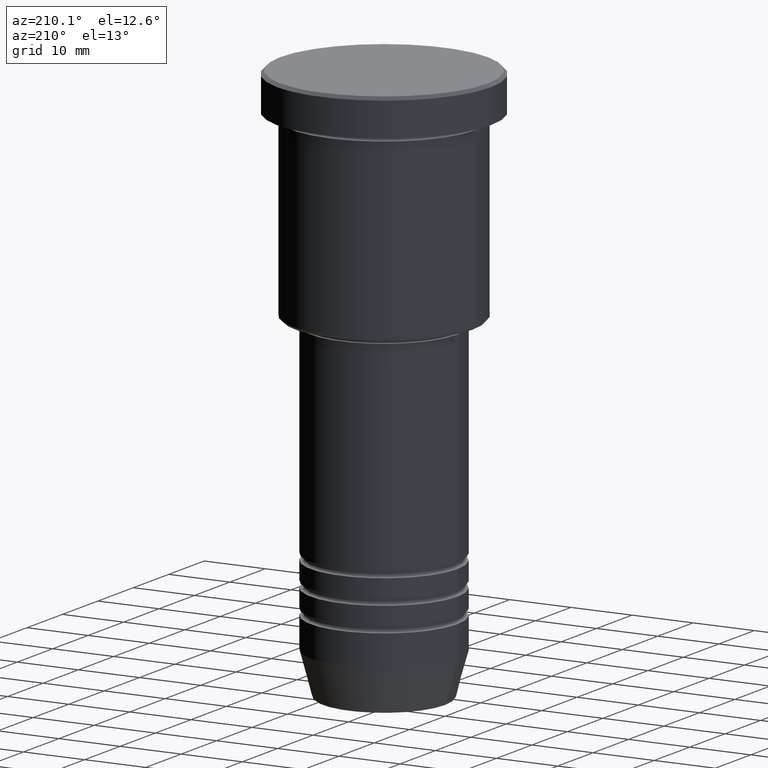
[diagram: clean part render]
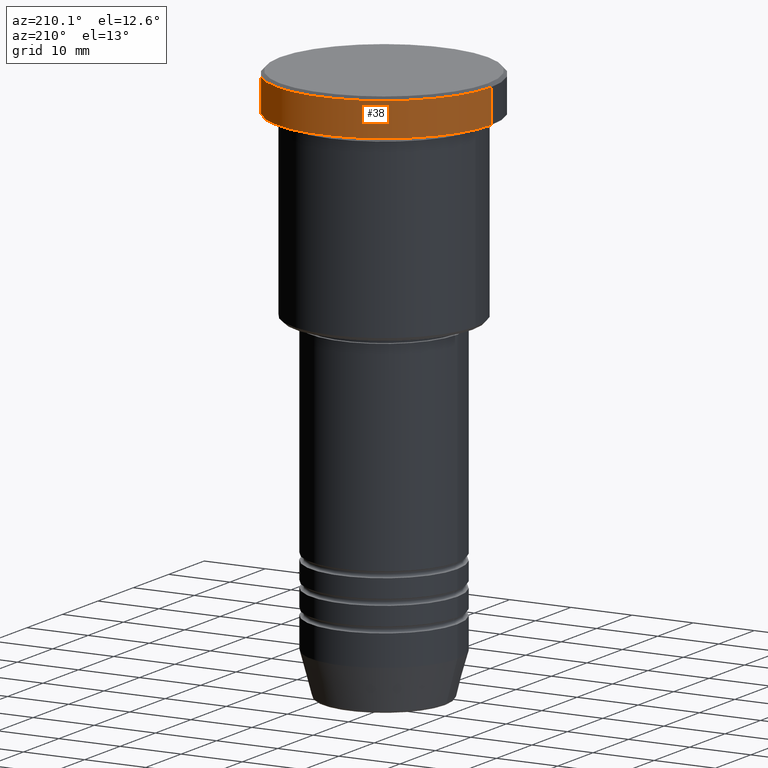
[diagram: same view with one face highlighted and labeled with its STEP entity id]
A machine part, auxiliary view. The second image highlights one B-rep face of the part: STEP entity #38.
In plain terms, the highlighted cylindrical surface (partial cylindrical patch) has radius 17.5 mm, axis along (-0, -0, 1).
Its self-contained STEP definition (entity closure, byte-faithful):
#22 = CARTESIAN_POINT ( 'NONE',  ( -17.50000000000000000, 2.143131898507868248E-15, 0.000000000000000000 ) ) ;
#38 = ADVANCED_FACE ( 'NONE', ( #1038 ), #945, .T. ) ;
#64 = VECTOR ( 'NONE', #702, 1000.000000000000000 ) ;
#66 = CARTESIAN_POINT ( 'NONE',  ( 0.000000000000000000, 0.000000000000000000, -5.999999999999995559 ) ) ;
#114 = CARTESIAN_POINT ( 'NONE',  ( 0.000000000000000000, 0.000000000000000000, -0.5000000000000142109 ) ) ;
#133 = CARTESIAN_POINT ( 'NONE',  ( 0.000000000000000000, 0.000000000000000000, 0.000000000000000000 ) ) ;
#150 = ORIENTED_EDGE ( 'NONE', *, *, #899, .T. ) ;
#175 = ORIENTED_EDGE ( 'NONE', *, *, #510, .T. ) ;
#177 = CIRCLE ( 'NONE', #354, 17.50000000000000000 ) ;
#184 = CARTESIAN_POINT ( 'NONE',  ( 17.50000000000000000, 0.000000000000000000, -0.5000000000000142109 ) ) ;
#187 = ORIENTED_EDGE ( 'NONE', *, *, #952, .F. ) ;
#286 = ORIENTED_EDGE ( 'NONE', *, *, #344, .T. ) ;
#324 = DIRECTION ( 'NONE',  ( 1.000000000000000000, 0.000000000000000000, 0.000000000000000000 ) ) ;
#334 = DIRECTION ( 'NONE',  ( 1.000000000000000000, 0.000000000000000000, 0.000000000000000000 ) ) ;
#344 = EDGE_CURVE ( 'NONE', #1124, #977, #534, .T. ) ;
#354 = AXIS2_PLACEMENT_3D ( 'NONE', #114, #679, #480 ) ;
#458 = AXIS2_PLACEMENT_3D ( 'NONE', #66, #775, #334 ) ;
#480 = DIRECTION ( 'NONE',  ( 1.000000000000000000, 0.000000000000000000, 0.000000000000000000 ) ) ;
#493 = DIRECTION ( 'NONE',  ( -0.000000000000000000, -0.000000000000000000, 1.000000000000000000 ) ) ;
#504 = LINE ( 'NONE', #861, #64 ) ;
#510 = EDGE_CURVE ( 'NONE', #977, #717, #806, .T. ) ;
#534 = CIRCLE ( 'NONE', #458, 17.50000000000000000 ) ;
#575 = VECTOR ( 'NONE', #1022, 1000.000000000000000 ) ;
#643 = CARTESIAN_POINT ( 'NONE',  ( 17.50000000000000000, 0.000000000000000000, -5.999999999999995559 ) ) ;
#679 = DIRECTION ( 'NONE',  ( 0.000000000000000000, 0.000000000000000000, -1.000000000000000000 ) ) ;
#702 = DIRECTION ( 'NONE',  ( -0.000000000000000000, -0.000000000000000000, 1.000000000000000000 ) ) ;
#717 = VERTEX_POINT ( 'NONE', #742 ) ;
#742 = CARTESIAN_POINT ( 'NONE',  ( -17.50000000000000000, 2.143131898507868248E-15, -0.5000000000000142109 ) ) ;
#746 = AXIS2_PLACEMENT_3D ( 'NONE', #133, #493, #324 ) ;
#775 = DIRECTION ( 'NONE',  ( -0.000000000000000000, -0.000000000000000000, 1.000000000000000000 ) ) ;
#806 = LINE ( 'NONE', #22, #575 ) ;
#861 = CARTESIAN_POINT ( 'NONE',  ( 17.50000000000000000, 0.000000000000000000, 0.000000000000000000 ) ) ;
#881 = EDGE_LOOP ( 'NONE', ( #286, #175, #150, #187 ) ) ;
#899 = EDGE_CURVE ( 'NONE', #717, #1040, #177, .T. ) ;
#945 = CYLINDRICAL_SURFACE ( 'NONE', #746, 17.50000000000000000 ) ;
#952 = EDGE_CURVE ( 'NONE', #1124, #1040, #504, .T. ) ;
#977 = VERTEX_POINT ( 'NONE', #1144 ) ;
#1022 = DIRECTION ( 'NONE',  ( -0.000000000000000000, -0.000000000000000000, 1.000000000000000000 ) ) ;
#1038 = FACE_OUTER_BOUND ( 'NONE', #881, .T. ) ;
#1040 = VERTEX_POINT ( 'NONE', #184 ) ;
#1124 = VERTEX_POINT ( 'NONE', #643 ) ;
#1144 = CARTESIAN_POINT ( 'NONE',  ( -17.50000000000000000, 2.143131898507868248E-15, -5.999999999999995559 ) ) ;